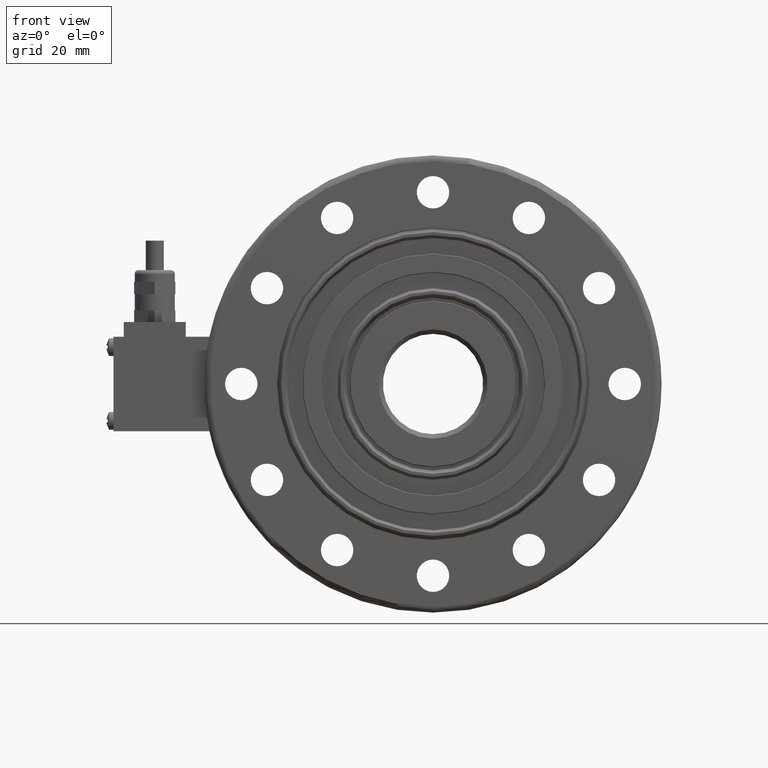
[diagram: clean part render]
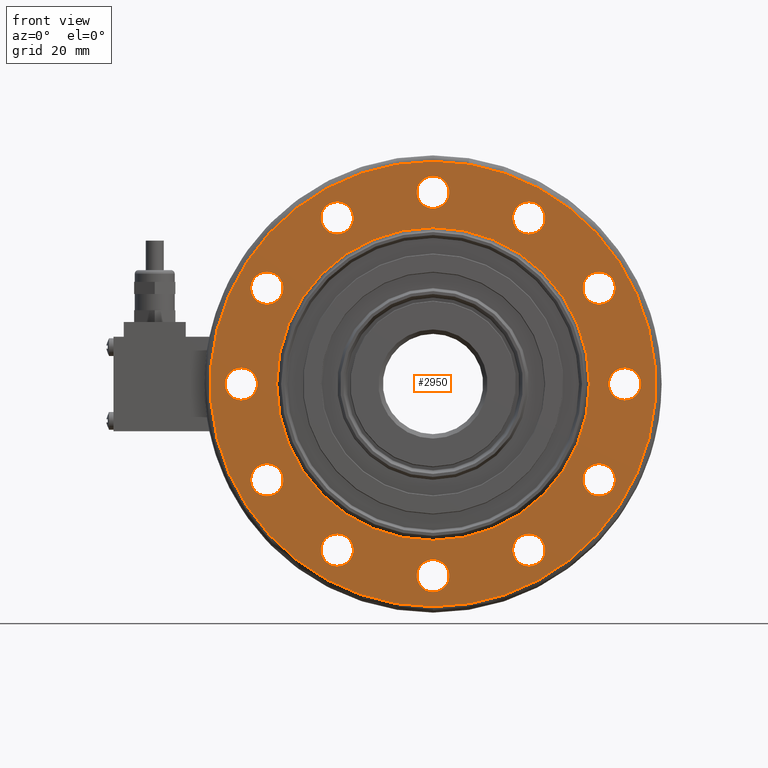
[diagram: same view with one face highlighted and labeled with its STEP entity id]
A machine part, front view. The second image highlights one B-rep face of the part: STEP entity #2950.
In plain terms, the highlighted planar face has unit normal (0, 1, 0).
Its self-contained STEP definition (entity closure, byte-faithful):
#28=PLANE('',#3316);
#120=FACE_BOUND('',#480,.T.);
#121=FACE_BOUND('',#481,.T.);
#122=FACE_BOUND('',#482,.T.);
#123=FACE_BOUND('',#483,.T.);
#124=FACE_BOUND('',#484,.T.);
#125=FACE_BOUND('',#485,.T.);
#126=FACE_BOUND('',#486,.T.);
#127=FACE_BOUND('',#487,.T.);
#128=FACE_BOUND('',#488,.T.);
#129=FACE_BOUND('',#489,.T.);
#130=FACE_BOUND('',#490,.T.);
#131=FACE_BOUND('',#491,.T.);
#132=FACE_BOUND('',#492,.T.);
#318=FACE_OUTER_BOUND('',#479,.T.);
#479=EDGE_LOOP('',(#2361,#2362));
#480=EDGE_LOOP('',(#2363,#2364));
#481=EDGE_LOOP('',(#2365,#2366));
#482=EDGE_LOOP('',(#2367,#2368));
#483=EDGE_LOOP('',(#2369,#2370));
#484=EDGE_LOOP('',(#2371,#2372));
#485=EDGE_LOOP('',(#2373,#2374));
#486=EDGE_LOOP('',(#2375,#2376));
#487=EDGE_LOOP('',(#2377,#2378));
#488=EDGE_LOOP('',(#2379,#2380));
#489=EDGE_LOOP('',(#2381,#2382));
#490=EDGE_LOOP('',(#2383,#2384));
#491=EDGE_LOOP('',(#2385,#2386));
#492=EDGE_LOOP('',(#2387,#2388));
#1007=CIRCLE('',#3056,53.);
#1008=CIRCLE('',#3057,53.);
#1022=CIRCLE('',#3074,75.5);
#1023=CIRCLE('',#3075,75.5);
#1055=CIRCLE('',#3119,5.5);
#1056=CIRCLE('',#3120,5.5);
#1059=CIRCLE('',#3124,5.5);
#1060=CIRCLE('',#3125,5.5);
#1063=CIRCLE('',#3129,5.5000000000018);
#1064=CIRCLE('',#3130,5.5000000000018);
#1067=CIRCLE('',#3134,5.50000000000215);
#1068=CIRCLE('',#3135,5.50000000000215);
#1071=CIRCLE('',#3139,5.50000000000229);
#1072=CIRCLE('',#3140,5.50000000000229);
#1075=CIRCLE('',#3144,5.50000000000218);
#1076=CIRCLE('',#3145,5.50000000000218);
#1079=CIRCLE('',#3149,5.50000000000188);
#1080=CIRCLE('',#3150,5.50000000000188);
#1083=CIRCLE('',#3154,5.50000000000138);
#1084=CIRCLE('',#3155,5.50000000000138);
#1087=CIRCLE('',#3159,5.5);
#1088=CIRCLE('',#3160,5.5);
#1091=CIRCLE('',#3164,5.5);
#1092=CIRCLE('',#3165,5.5);
#1095=CIRCLE('',#3169,5.50000000000001);
#1096=CIRCLE('',#3170,5.50000000000001);
#1099=CIRCLE('',#3174,5.5);
#1100=CIRCLE('',#3175,5.5);
#1205=VERTEX_POINT('',#4301);
#1206=VERTEX_POINT('',#4303);
#1217=VERTEX_POINT('',#4332);
#1218=VERTEX_POINT('',#4334);
#1255=VERTEX_POINT('',#4570);
#1256=VERTEX_POINT('',#4571);
#1259=VERTEX_POINT('',#4580);
#1260=VERTEX_POINT('',#4581);
#1263=VERTEX_POINT('',#4590);
#1264=VERTEX_POINT('',#4591);
#1267=VERTEX_POINT('',#4600);
#1268=VERTEX_POINT('',#4601);
#1271=VERTEX_POINT('',#4610);
#1272=VERTEX_POINT('',#4611);
#1275=VERTEX_POINT('',#4620);
#1276=VERTEX_POINT('',#4621);
#1279=VERTEX_POINT('',#4630);
#1280=VERTEX_POINT('',#4631);
#1283=VERTEX_POINT('',#4640);
#1284=VERTEX_POINT('',#4641);
#1287=VERTEX_POINT('',#4650);
#1288=VERTEX_POINT('',#4651);
#1291=VERTEX_POINT('',#4660);
#1292=VERTEX_POINT('',#4661);
#1295=VERTEX_POINT('',#4670);
#1296=VERTEX_POINT('',#4671);
#1299=VERTEX_POINT('',#4680);
#1300=VERTEX_POINT('',#4681);
#1525=EDGE_CURVE('',#1205,#1206,#1007,.T.);
#1526=EDGE_CURVE('',#1206,#1205,#1008,.T.);
#1541=EDGE_CURVE('',#1218,#1217,#1022,.T.);
#1542=EDGE_CURVE('',#1217,#1218,#1023,.T.);
#1590=EDGE_CURVE('',#1255,#1256,#1055,.T.);
#1591=EDGE_CURVE('',#1256,#1255,#1056,.T.);
#1595=EDGE_CURVE('',#1259,#1260,#1059,.T.);
#1596=EDGE_CURVE('',#1260,#1259,#1060,.T.);
#1600=EDGE_CURVE('',#1263,#1264,#1063,.T.);
#1601=EDGE_CURVE('',#1264,#1263,#1064,.T.);
#1605=EDGE_CURVE('',#1267,#1268,#1067,.T.);
#1606=EDGE_CURVE('',#1268,#1267,#1068,.T.);
#1610=EDGE_CURVE('',#1271,#1272,#1071,.T.);
#1611=EDGE_CURVE('',#1272,#1271,#1072,.T.);
#1615=EDGE_CURVE('',#1275,#1276,#1075,.T.);
#1616=EDGE_CURVE('',#1276,#1275,#1076,.T.);
#1620=EDGE_CURVE('',#1279,#1280,#1079,.T.);
#1621=EDGE_CURVE('',#1280,#1279,#1080,.T.);
#1625=EDGE_CURVE('',#1283,#1284,#1083,.T.);
#1626=EDGE_CURVE('',#1284,#1283,#1084,.T.);
#1630=EDGE_CURVE('',#1287,#1288,#1087,.T.);
#1631=EDGE_CURVE('',#1288,#1287,#1088,.T.);
#1635=EDGE_CURVE('',#1291,#1292,#1091,.T.);
#1636=EDGE_CURVE('',#1292,#1291,#1092,.T.);
#1640=EDGE_CURVE('',#1295,#1296,#1095,.T.);
#1641=EDGE_CURVE('',#1296,#1295,#1096,.T.);
#1645=EDGE_CURVE('',#1299,#1300,#1099,.T.);
#1646=EDGE_CURVE('',#1300,#1299,#1100,.T.);
#2361=ORIENTED_EDGE('',*,*,#1541,.T.);
#2362=ORIENTED_EDGE('',*,*,#1542,.T.);
#2363=ORIENTED_EDGE('',*,*,#1590,.T.);
#2364=ORIENTED_EDGE('',*,*,#1591,.T.);
#2365=ORIENTED_EDGE('',*,*,#1595,.T.);
#2366=ORIENTED_EDGE('',*,*,#1596,.T.);
#2367=ORIENTED_EDGE('',*,*,#1600,.T.);
#2368=ORIENTED_EDGE('',*,*,#1601,.T.);
#2369=ORIENTED_EDGE('',*,*,#1605,.T.);
#2370=ORIENTED_EDGE('',*,*,#1606,.T.);
#2371=ORIENTED_EDGE('',*,*,#1610,.T.);
#2372=ORIENTED_EDGE('',*,*,#1611,.T.);
#2373=ORIENTED_EDGE('',*,*,#1615,.T.);
#2374=ORIENTED_EDGE('',*,*,#1616,.T.);
#2375=ORIENTED_EDGE('',*,*,#1620,.T.);
#2376=ORIENTED_EDGE('',*,*,#1621,.T.);
#2377=ORIENTED_EDGE('',*,*,#1625,.T.);
#2378=ORIENTED_EDGE('',*,*,#1626,.T.);
#2379=ORIENTED_EDGE('',*,*,#1630,.T.);
#2380=ORIENTED_EDGE('',*,*,#1631,.T.);
#2381=ORIENTED_EDGE('',*,*,#1635,.T.);
#2382=ORIENTED_EDGE('',*,*,#1636,.T.);
#2383=ORIENTED_EDGE('',*,*,#1640,.T.);
#2384=ORIENTED_EDGE('',*,*,#1641,.T.);
#2385=ORIENTED_EDGE('',*,*,#1645,.T.);
#2386=ORIENTED_EDGE('',*,*,#1646,.T.);
#2387=ORIENTED_EDGE('',*,*,#1526,.F.);
#2388=ORIENTED_EDGE('',*,*,#1525,.F.);
#2950=ADVANCED_FACE('',(#318,#120,#121,#122,#123,#124,#125,#126,#127,#128,
#129,#130,#131,#132),#28,.F.);
#3056=AXIS2_PLACEMENT_3D('',#4304,#3410,#3411);
#3057=AXIS2_PLACEMENT_3D('',#4305,#3412,#3413);
#3074=AXIS2_PLACEMENT_3D('',#4335,#3447,#3448);
#3075=AXIS2_PLACEMENT_3D('',#4336,#3449,#3450);
#3119=AXIS2_PLACEMENT_3D('',#4572,#3547,#3548);
#3120=AXIS2_PLACEMENT_3D('',#4573,#3549,#3550);
#3124=AXIS2_PLACEMENT_3D('',#4582,#3558,#3559);
#3125=AXIS2_PLACEMENT_3D('',#4583,#3560,#3561);
#3129=AXIS2_PLACEMENT_3D('',#4592,#3569,#3570);
#3130=AXIS2_PLACEMENT_3D('',#4593,#3571,#3572);
#3134=AXIS2_PLACEMENT_3D('',#4602,#3580,#3581);
#3135=AXIS2_PLACEMENT_3D('',#4603,#3582,#3583);
#3139=AXIS2_PLACEMENT_3D('',#4612,#3591,#3592);
#3140=AXIS2_PLACEMENT_3D('',#4613,#3593,#3594);
#3144=AXIS2_PLACEMENT_3D('',#4622,#3602,#3603);
#3145=AXIS2_PLACEMENT_3D('',#4623,#3604,#3605);
#3149=AXIS2_PLACEMENT_3D('',#4632,#3613,#3614);
#3150=AXIS2_PLACEMENT_3D('',#4633,#3615,#3616);
#3154=AXIS2_PLACEMENT_3D('',#4642,#3624,#3625);
#3155=AXIS2_PLACEMENT_3D('',#4643,#3626,#3627);
#3159=AXIS2_PLACEMENT_3D('',#4652,#3635,#3636);
#3160=AXIS2_PLACEMENT_3D('',#4653,#3637,#3638);
#3164=AXIS2_PLACEMENT_3D('',#4662,#3646,#3647);
#3165=AXIS2_PLACEMENT_3D('',#4663,#3648,#3649);
#3169=AXIS2_PLACEMENT_3D('',#4672,#3657,#3658);
#3170=AXIS2_PLACEMENT_3D('',#4673,#3659,#3660);
#3174=AXIS2_PLACEMENT_3D('',#4682,#3668,#3669);
#3175=AXIS2_PLACEMENT_3D('',#4683,#3670,#3671);
#3316=AXIS2_PLACEMENT_3D('',#5222,#3992,#3993);
#3410=DIRECTION('center_axis',(0.,-1.,0.));
#3411=DIRECTION('ref_axis',(0.,0.,-1.));
#3412=DIRECTION('center_axis',(0.,-1.,0.));
#3413=DIRECTION('ref_axis',(0.,0.,-1.));
#3447=DIRECTION('center_axis',(0.,-1.,0.));
#3448=DIRECTION('ref_axis',(0.,0.,1.));
#3449=DIRECTION('center_axis',(0.,-1.,0.));
#3450=DIRECTION('ref_axis',(0.,0.,1.));
#3547=DIRECTION('center_axis',(0.,1.,0.));
#3548=DIRECTION('ref_axis',(0.,0.,1.));
#3549=DIRECTION('center_axis',(0.,1.,0.));
#3550=DIRECTION('ref_axis',(0.,0.,1.));
#3558=DIRECTION('center_axis',(0.,1.,0.));
#3559=DIRECTION('ref_axis',(0.,0.,1.));
#3560=DIRECTION('center_axis',(0.,1.,0.));
#3561=DIRECTION('ref_axis',(0.,0.,1.));
#3569=DIRECTION('center_axis',(0.,1.,0.));
#3570=DIRECTION('ref_axis',(0.,0.,1.));
#3571=DIRECTION('center_axis',(0.,1.,0.));
#3572=DIRECTION('ref_axis',(0.,0.,1.));
#3580=DIRECTION('center_axis',(0.,1.,0.));
#3581=DIRECTION('ref_axis',(0.,0.,1.));
#3582=DIRECTION('center_axis',(0.,1.,0.));
#3583=DIRECTION('ref_axis',(0.,0.,1.));
#3591=DIRECTION('center_axis',(0.,1.,0.));
#3592=DIRECTION('ref_axis',(0.,0.,1.));
#3593=DIRECTION('center_axis',(0.,1.,0.));
#3594=DIRECTION('ref_axis',(0.,0.,1.));
#3602=DIRECTION('center_axis',(0.,1.,0.));
#3603=DIRECTION('ref_axis',(0.,0.,1.));
#3604=DIRECTION('center_axis',(0.,1.,0.));
#3605=DIRECTION('ref_axis',(0.,0.,1.));
#3613=DIRECTION('center_axis',(0.,1.,0.));
#3614=DIRECTION('ref_axis',(0.,0.,1.));
#3615=DIRECTION('center_axis',(0.,1.,0.));
#3616=DIRECTION('ref_axis',(0.,0.,1.));
#3624=DIRECTION('center_axis',(0.,1.,0.));
#3625=DIRECTION('ref_axis',(0.,0.,1.));
#3626=DIRECTION('center_axis',(0.,1.,0.));
#3627=DIRECTION('ref_axis',(0.,0.,1.));
#3635=DIRECTION('center_axis',(0.,1.,0.));
#3636=DIRECTION('ref_axis',(0.,0.,1.));
#3637=DIRECTION('center_axis',(0.,1.,0.));
#3638=DIRECTION('ref_axis',(0.,0.,1.));
#3646=DIRECTION('center_axis',(0.,1.,0.));
#3647=DIRECTION('ref_axis',(0.,0.,1.));
#3648=DIRECTION('center_axis',(0.,1.,0.));
#3649=DIRECTION('ref_axis',(0.,0.,1.));
#3657=DIRECTION('center_axis',(0.,1.,0.));
#3658=DIRECTION('ref_axis',(0.,0.,1.));
#3659=DIRECTION('center_axis',(0.,1.,0.));
#3660=DIRECTION('ref_axis',(0.,0.,1.));
#3668=DIRECTION('center_axis',(0.,1.,0.));
#3669=DIRECTION('ref_axis',(0.,0.,1.));
#3670=DIRECTION('center_axis',(0.,1.,0.));
#3671=DIRECTION('ref_axis',(0.,0.,1.));
#3992=DIRECTION('center_axis',(0.,1.,0.));
#3993=DIRECTION('ref_axis',(0.,0.,1.));
#4301=CARTESIAN_POINT('',(-6.49062803548097E-15,-22.4999999999272,53.));
#4303=CARTESIAN_POINT('',(0.,-22.4999999999999,-53.));
#4304=CARTESIAN_POINT('Origin',(0.,-22.4999999999999,0.));
#4305=CARTESIAN_POINT('Origin',(0.,-22.4999999999999,0.));
#4332=CARTESIAN_POINT('',(-9.24608333356251E-15,-22.4999999999999,-75.5));
#4334=CARTESIAN_POINT('',(0.,-22.4999999999999,75.5));
#4335=CARTESIAN_POINT('Origin',(0.,-22.4999999999999,0.));
#4336=CARTESIAN_POINT('Origin',(0.,-22.4999999999999,0.));
#4570=CARTESIAN_POINT('',(-32.4999999999993,-22.5,-50.7916512459889));
#4571=CARTESIAN_POINT('',(-32.4999999999993,-22.5,-61.7916512459889));
#4572=CARTESIAN_POINT('Origin',(-32.4999999999993,-22.5,-56.2916512459889));
#4573=CARTESIAN_POINT('Origin',(-32.4999999999993,-22.5,-56.2916512459889));
#4580=CARTESIAN_POINT('',(-56.2916512459881,-22.5,-27.0000000000007));
#4581=CARTESIAN_POINT('',(-56.2916512459881,-22.5,-38.0000000000007));
#4582=CARTESIAN_POINT('Origin',(-56.2916512459881,-22.5,-32.5000000000007));
#4583=CARTESIAN_POINT('Origin',(-56.2916512459881,-22.5,-32.5000000000007));
#4590=CARTESIAN_POINT('',(-64.9999999999991,-22.5,5.50000000000273));
#4591=CARTESIAN_POINT('',(-64.9999999999991,-22.5,-5.50000000000088));
#4592=CARTESIAN_POINT('Origin',(-64.9999999999991,-22.5,9.2370555648813E-13));
#4593=CARTESIAN_POINT('Origin',(-64.9999999999991,-22.5,9.2370555648813E-13));
#4600=CARTESIAN_POINT('',(-56.2916512459871,-22.5,38.000000000003));
#4601=CARTESIAN_POINT('',(-56.2916512459871,-22.5,26.9999999999987));
#4602=CARTESIAN_POINT('Origin',(-56.2916512459871,-22.5,32.5000000000008));
#4603=CARTESIAN_POINT('Origin',(-56.2916512459871,-22.5,32.5000000000008));
#4610=CARTESIAN_POINT('',(-32.4999999999983,-22.5,61.7916512459913));
#4611=CARTESIAN_POINT('',(-32.4999999999983,-22.5,50.7916512459867));
#4612=CARTESIAN_POINT('Origin',(-32.4999999999983,-22.5,56.291651245989));
#4613=CARTESIAN_POINT('Origin',(-32.4999999999983,-22.5,56.291651245989));
#4620=CARTESIAN_POINT('',(1.83149070458734E-12,-22.5,70.5000000000022));
#4621=CARTESIAN_POINT('',(1.83081714884781E-12,-22.5,59.4999999999978));
#4622=CARTESIAN_POINT('Origin',(1.83149070458734E-12,-22.5,65.));
#4623=CARTESIAN_POINT('Origin',(1.83149070458734E-12,-22.5,65.));
#4630=CARTESIAN_POINT('',(32.5000000000017,-22.5,61.7916512459899));
#4631=CARTESIAN_POINT('',(32.5000000000017,-22.5,50.7916512459862));
#4632=CARTESIAN_POINT('Origin',(32.5000000000017,-22.5,56.2916512459881));
#4633=CARTESIAN_POINT('Origin',(32.5000000000017,-22.5,56.2916512459881));
#4640=CARTESIAN_POINT('',(56.2916512459899,-22.5,38.0000000000006));
#4641=CARTESIAN_POINT('',(56.2916512459899,-22.5,26.9999999999978));
#4642=CARTESIAN_POINT('Origin',(56.2916512459899,-22.5,32.4999999999992));
#4643=CARTESIAN_POINT('Origin',(56.2916512459899,-22.5,32.4999999999992));
#4650=CARTESIAN_POINT('',(65.,-22.5,5.50000000000023));
#4651=CARTESIAN_POINT('',(65.,-22.5,-5.49999999999978));
#4652=CARTESIAN_POINT('Origin',(65.,-22.5,2.26946287024804E-13));
#4653=CARTESIAN_POINT('Origin',(65.,-22.5,2.26946287024804E-13));
#4660=CARTESIAN_POINT('',(56.2916512459886,-22.5,-26.9999999999999));
#4661=CARTESIAN_POINT('',(56.2916512459886,-22.5,-37.9999999999999));
#4662=CARTESIAN_POINT('Origin',(56.2916512459886,-22.5,-32.4999999999999));
#4663=CARTESIAN_POINT('Origin',(56.2916512459886,-22.5,-32.4999999999999));
#4670=CARTESIAN_POINT('',(32.5000000000001,-22.5,-50.7916512459885));
#4671=CARTESIAN_POINT('',(32.5000000000001,-22.5,-61.7916512459885));
#4672=CARTESIAN_POINT('Origin',(32.5000000000001,-22.5,-56.2916512459885));
#4673=CARTESIAN_POINT('Origin',(32.5000000000001,-22.5,-56.2916512459885));
#4680=CARTESIAN_POINT('',(0.,-22.5,-59.5));
#4681=CARTESIAN_POINT('',(-6.73555739531044E-16,-22.5,-70.5));
#4682=CARTESIAN_POINT('Origin',(0.,-22.5,-65.));
#4683=CARTESIAN_POINT('Origin',(0.,-22.5,-65.));
#5222=CARTESIAN_POINT('Origin',(54.,-22.4999999999999,0.));